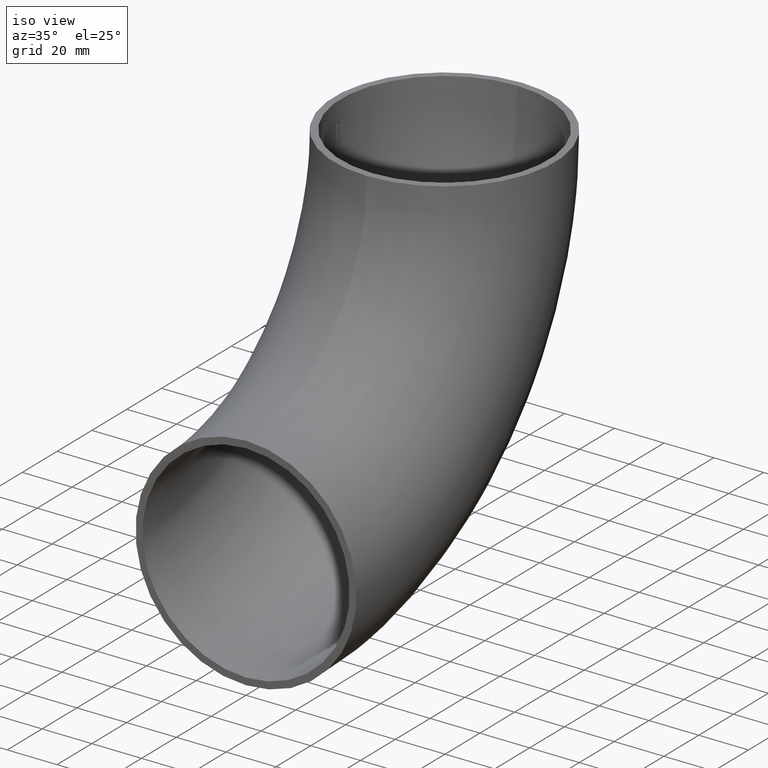
[diagram: clean part render]
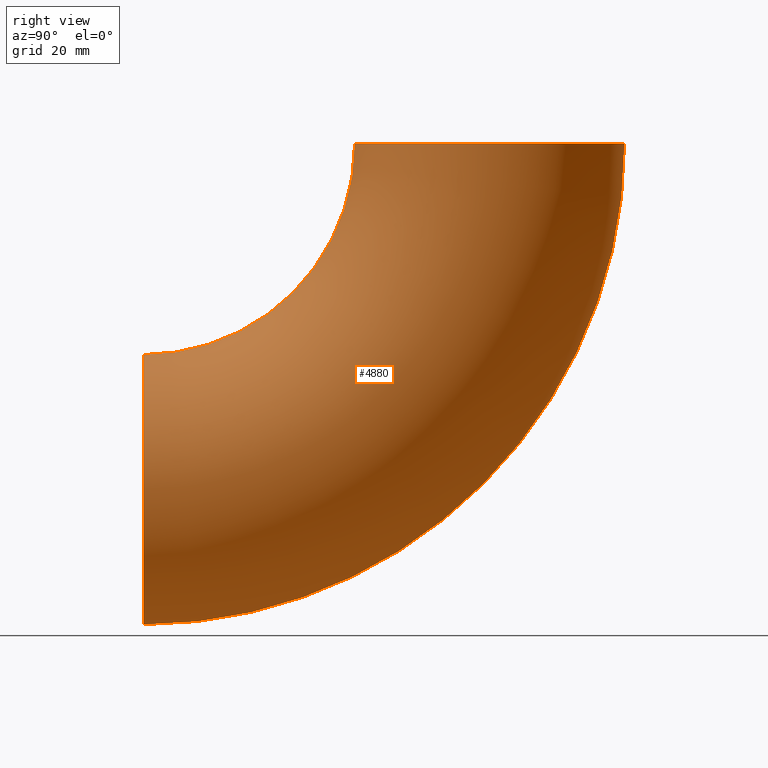
[diagram: tour spotlight — one face highlighted and labeled with its STEP entity id]
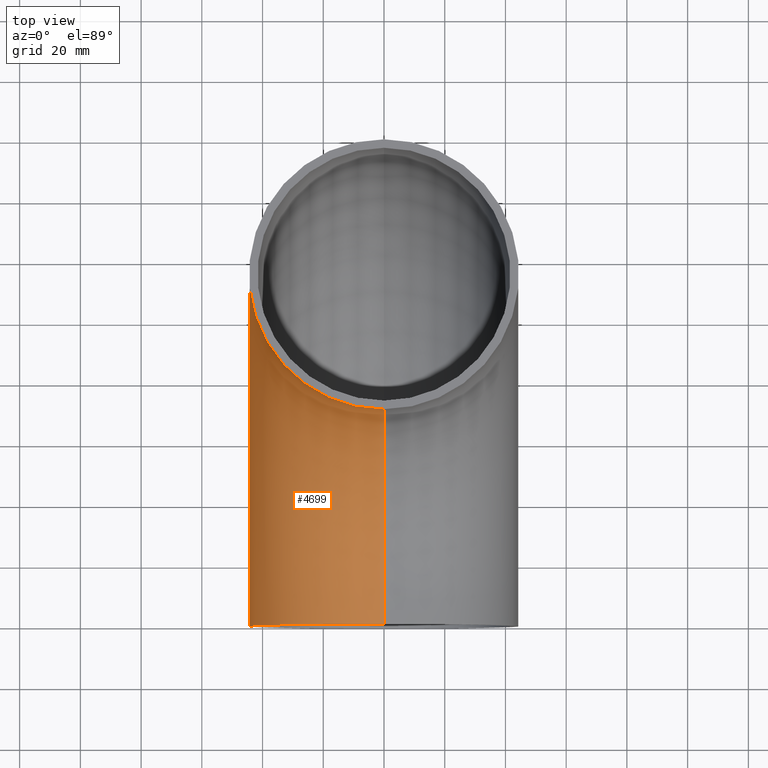
[diagram: tour spotlight — one face highlighted and labeled with its STEP entity id]
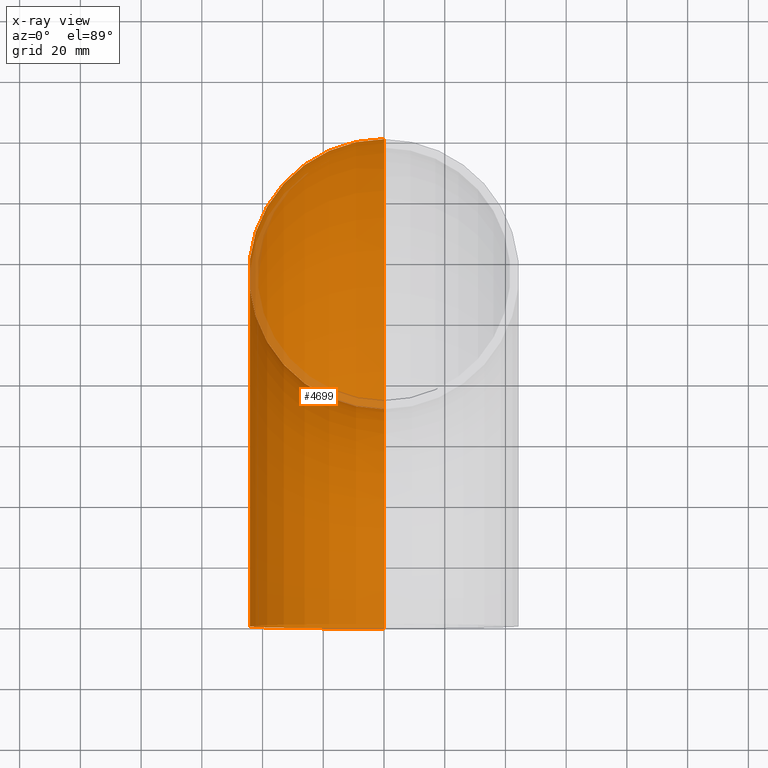
[diagram: x-ray of the same camera — body ghosted, this tour face saturated]
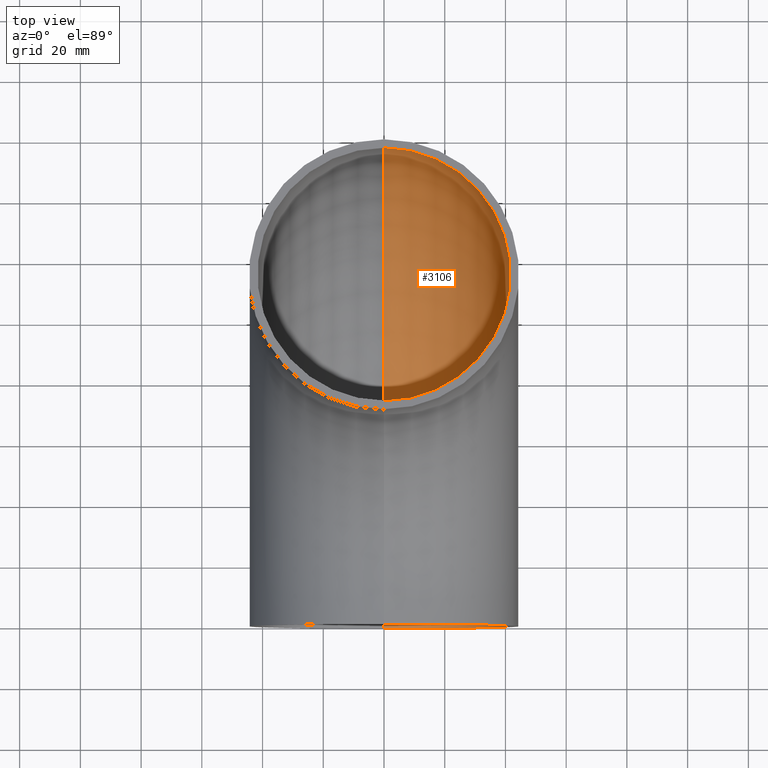
[diagram: tour spotlight — one face highlighted and labeled with its STEP entity id]
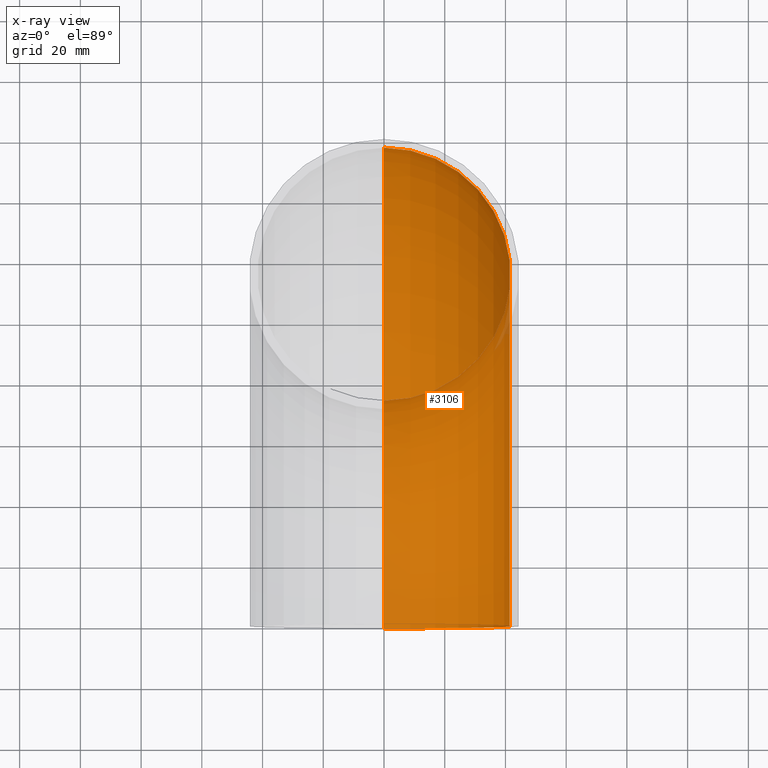
[diagram: x-ray of the same camera — body ghosted, this tour face saturated]
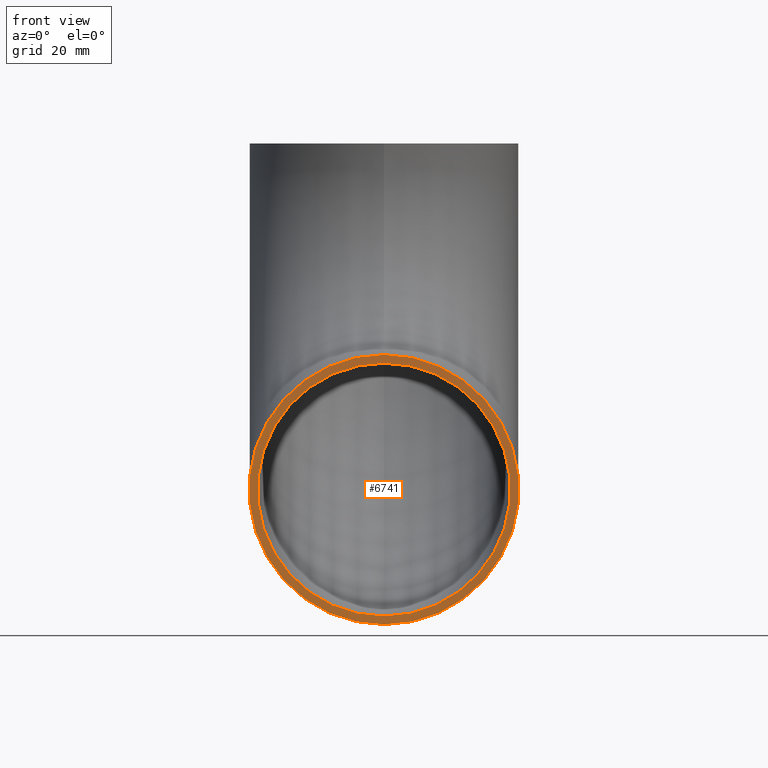
[diagram: tour spotlight — one face highlighted and labeled with its STEP entity id]
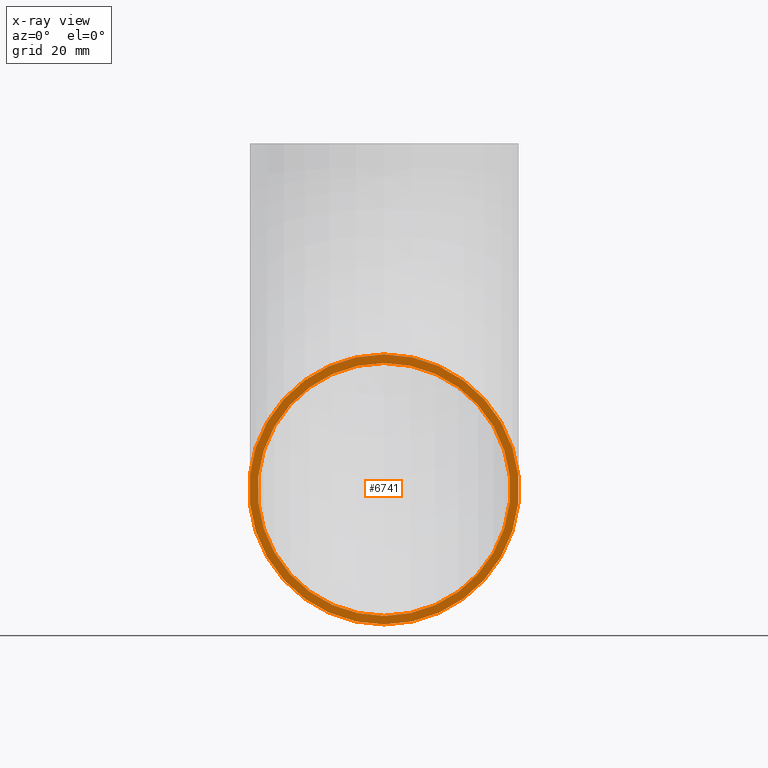
[diagram: x-ray of the same camera — body ghosted, this tour face saturated]
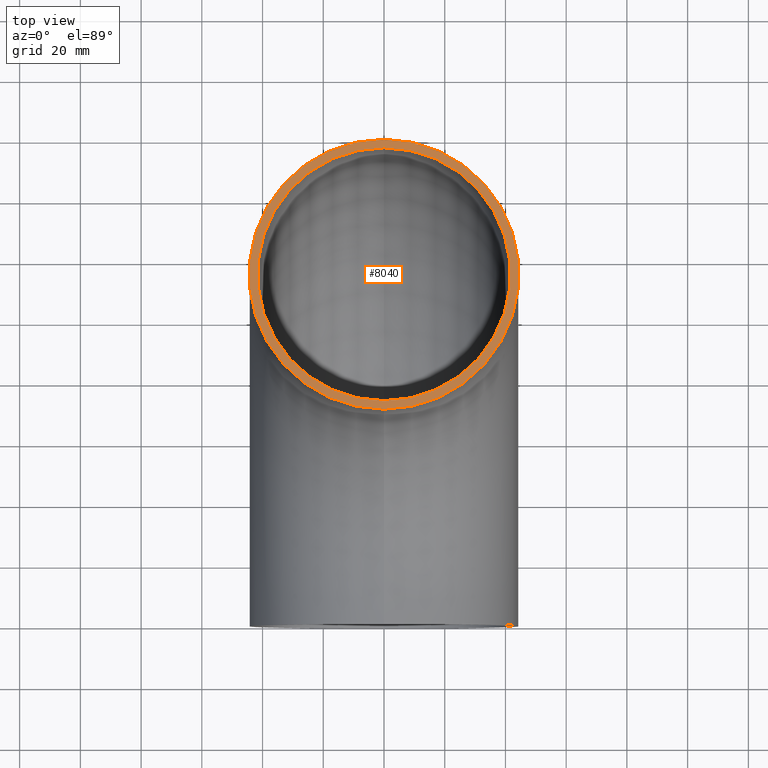
[diagram: tour spotlight — one face highlighted and labeled with its STEP entity id]
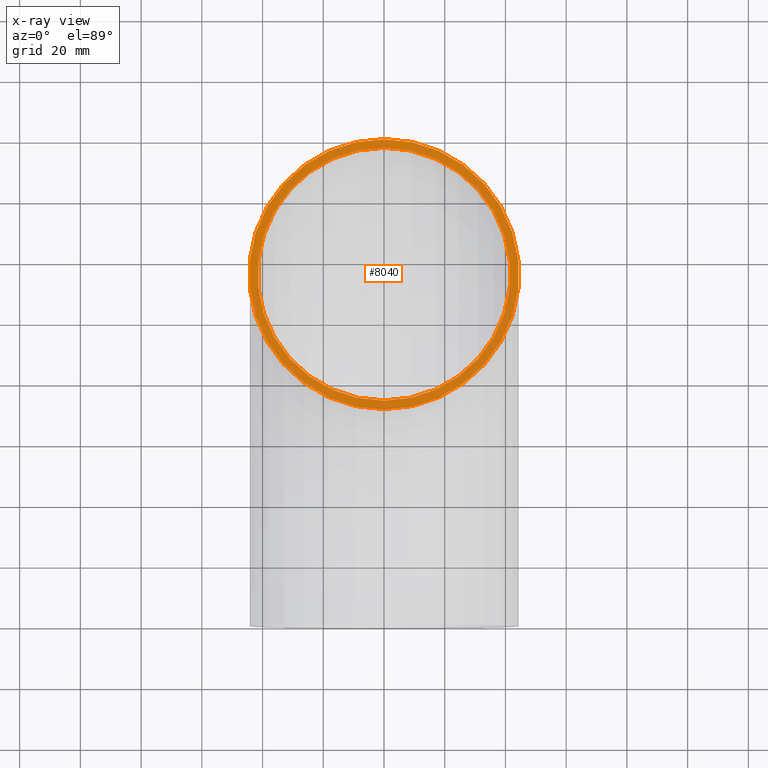
[diagram: x-ray of the same camera — body ghosted, this tour face saturated]
A machine part: a face-by-face anatomy tour. The part has 229 B-rep faces; the first image is the clean iso view, then the 5 largest visible faces are spotlighted one at a time (largest first), each with its STEP entity span.

Face 1 — right view, entity #4880. In plain terms, the highlighted toroidal blend (fillet) surface has major radius 114 mm and minor (blend) radius 44.45 mm.
Definition (entity closure, byte-faithful):
#225 = CARTESIAN_POINT ( 'NONE',  ( 0.0000000000000000000, 0.0000000000000000000, -69.54999999999999700 ) ) ;
#376 = ORIENTED_EDGE ( 'NONE', *, *, #2592, .F. ) ;
#450 = TOROIDAL_SURFACE ( 'NONE', #11426, 114.0000000000000000, 44.45000000000001000 ) ;
#1059 = DIRECTION ( 'NONE',  ( 0.0000000000000000000, 0.0000000000000000000, 1.000000000000000000 ) ) ;
#1529 = AXIS2_PLACEMENT_3D ( 'NONE', #6995, #1609, #11393 ) ;
#1609 = DIRECTION ( 'NONE',  ( 0.0000000000000000000, 6.123233995736766000E-017, 1.000000000000000000 ) ) ;
#2021 = DIRECTION ( 'NONE',  ( 0.0000000000000000000, 1.000000000000000000, 0.0000000000000000000 ) ) ;
#2197 = DIRECTION ( 'NONE',  ( -1.000000000000000000, -0.0000000000000000000, -0.0000000000000000000 ) ) ;
#2271 = DIRECTION ( 'NONE',  ( 0.0000000000000000000, 0.0000000000000000000, 1.000000000000000000 ) ) ;
#2338 = CARTESIAN_POINT ( 'NONE',  ( 0.0000000000000000000, 0.0000000000000000000, 0.0000000000000000000 ) ) ;
#2365 = CARTESIAN_POINT ( 'NONE',  ( 0.0000000000000000000, 0.0000000000000000000, 0.0000000000000000000 ) ) ;
#2423 = AXIS2_PLACEMENT_3D ( 'NONE', #2338, #8538, #4126 ) ;
#2467 = EDGE_LOOP ( 'NONE', ( #5878, #376, #2709, #10920 ) ) ;
#2592 = EDGE_CURVE ( 'NONE', #10753, #9542, #6303, .T. ) ;
#2709 = ORIENTED_EDGE ( 'NONE', *, *, #5150, .T. ) ;
#3852 = AXIS2_PLACEMENT_3D ( 'NONE', #5651, #2021, #1059 ) ;
#4126 = DIRECTION ( 'NONE',  ( 0.0000000000000000000, 0.0000000000000000000, 1.000000000000000000 ) ) ;
#4788 = CARTESIAN_POINT ( 'NONE',  ( 0.0000000000000000000, 69.54999999999999700, -4.258709244034919700E-015 ) ) ;
#4880 = ADVANCED_FACE ( 'NONE', ( #10001 ), #450, .T. ) ;
#5150 = EDGE_CURVE ( 'NONE', #10753, #5833, #9724, .T. ) ;
#5164 = CIRCLE ( 'NONE', #3852, 44.45000000000000300 ) ;
#5651 = CARTESIAN_POINT ( 'NONE',  ( 0.0000000000000000000, 0.0000000000000000000, -114.0000000000000000 ) ) ;
#5791 = CARTESIAN_POINT ( 'NONE',  ( 5.443555022209986500E-015, 0.0000000000000000000, 0.0000000000000000000 ) ) ;
#5833 = VERTEX_POINT ( 'NONE', #225 ) ;
#5878 = ORIENTED_EDGE ( 'NONE', *, *, #6168, .F. ) ;
#5885 = DIRECTION ( 'NONE',  ( -1.000000000000000000, -0.0000000000000000000, -0.0000000000000000000 ) ) ;
#5917 = DIRECTION ( 'NONE',  ( 0.0000000000000000000, 0.0000000000000000000, 1.000000000000000000 ) ) ;
#6168 = EDGE_CURVE ( 'NONE', #9542, #10046, #8336, .T. ) ;
#6303 = CIRCLE ( 'NONE', #1529, 44.45000000000000300 ) ;
#6995 = CARTESIAN_POINT ( 'NONE',  ( 0.0000000000000000000, 114.0000000000000000, -6.980486755139912900E-015 ) ) ;
#8009 = CARTESIAN_POINT ( 'NONE',  ( 0.0000000000000000000, 158.4500000000000200, -9.702264266244906900E-015 ) ) ;
#8336 = CIRCLE ( 'NONE', #2423, 158.4500000000000200 ) ;
#8538 = DIRECTION ( 'NONE',  ( -1.000000000000000000, -0.0000000000000000000, -0.0000000000000000000 ) ) ;
#9018 = EDGE_CURVE ( 'NONE', #5833, #10046, #5164, .T. ) ;
#9036 = AXIS2_PLACEMENT_3D ( 'NONE', #5791, #2197, #2271 ) ;
#9542 = VERTEX_POINT ( 'NONE', #8009 ) ;
#9724 = CIRCLE ( 'NONE', #9036, 69.54999999999999700 ) ;
#10001 = FACE_OUTER_BOUND ( 'NONE', #2467, .T. ) ;
#10046 = VERTEX_POINT ( 'NONE', #11166 ) ;
#10753 = VERTEX_POINT ( 'NONE', #4788 ) ;
#10920 = ORIENTED_EDGE ( 'NONE', *, *, #9018, .T. ) ;
#11166 = CARTESIAN_POINT ( 'NONE',  ( 0.0000000000000000000, 0.0000000000000000000, -158.4500000000000200 ) ) ;
#11393 = DIRECTION ( 'NONE',  ( 0.0000000000000000000, -1.000000000000000000, 6.123233995736768500E-017 ) ) ;
#11426 = AXIS2_PLACEMENT_3D ( 'NONE', #2365, #5885, #5917 ) ;

Face 2 — top view, entity #4699. An x-ray twin of the same camera follows (body ghosted, this face saturated) — the face is partly hidden behind the body. In plain terms, the highlighted toroidal blend (fillet) surface has major radius 114 mm and minor (blend) radius 44.45 mm.
Definition (entity closure, byte-faithful):
#225 = CARTESIAN_POINT ( 'NONE',  ( 0.0000000000000000000, 0.0000000000000000000, -69.54999999999999700 ) ) ;
#274 = DIRECTION ( 'NONE',  ( 0.0000000000000000000, 6.123233995736766000E-017, 1.000000000000000000 ) ) ;
#294 = EDGE_CURVE ( 'NONE', #9542, #10753, #9893, .T. ) ;
#1206 = DIRECTION ( 'NONE',  ( 0.0000000000000000000, -1.000000000000000000, 6.123233995736768500E-017 ) ) ;
#1241 = CARTESIAN_POINT ( 'NONE',  ( 0.0000000000000000000, 114.0000000000000000, -6.980486755139912900E-015 ) ) ;
#1498 = ORIENTED_EDGE ( 'NONE', *, *, #5150, .F. ) ;
#2197 = DIRECTION ( 'NONE',  ( -1.000000000000000000, -0.0000000000000000000, -0.0000000000000000000 ) ) ;
#2271 = DIRECTION ( 'NONE',  ( 0.0000000000000000000, 0.0000000000000000000, 1.000000000000000000 ) ) ;
#2338 = CARTESIAN_POINT ( 'NONE',  ( 0.0000000000000000000, 0.0000000000000000000, 0.0000000000000000000 ) ) ;
#2380 = TOROIDAL_SURFACE ( 'NONE', #10377, 114.0000000000000000, 44.45000000000001000 ) ;
#2423 = AXIS2_PLACEMENT_3D ( 'NONE', #2338, #8538, #4126 ) ;
#2670 = DIRECTION ( 'NONE',  ( 0.0000000000000000000, 1.000000000000000000, 0.0000000000000000000 ) ) ;
#2744 = CARTESIAN_POINT ( 'NONE',  ( 0.0000000000000000000, 0.0000000000000000000, 0.0000000000000000000 ) ) ;
#2786 = ORIENTED_EDGE ( 'NONE', *, *, #6168, .T. ) ;
#3021 = DIRECTION ( 'NONE',  ( 0.0000000000000000000, 0.0000000000000000000, 1.000000000000000000 ) ) ;
#4126 = DIRECTION ( 'NONE',  ( 0.0000000000000000000, 0.0000000000000000000, 1.000000000000000000 ) ) ;
#4540 = EDGE_CURVE ( 'NONE', #10046, #5833, #8200, .T. ) ;
#4699 = ADVANCED_FACE ( 'NONE', ( #5312 ), #2380, .T. ) ;
#4788 = CARTESIAN_POINT ( 'NONE',  ( 0.0000000000000000000, 69.54999999999999700, -4.258709244034919700E-015 ) ) ;
#5150 = EDGE_CURVE ( 'NONE', #10753, #5833, #9724, .T. ) ;
#5290 = DIRECTION ( 'NONE',  ( 0.0000000000000000000, 0.0000000000000000000, 1.000000000000000000 ) ) ;
#5312 = FACE_OUTER_BOUND ( 'NONE', #7423, .T. ) ;
#5682 = DIRECTION ( 'NONE',  ( -1.000000000000000000, -0.0000000000000000000, -0.0000000000000000000 ) ) ;
#5791 = CARTESIAN_POINT ( 'NONE',  ( 5.443555022209986500E-015, 0.0000000000000000000, 0.0000000000000000000 ) ) ;
#5833 = VERTEX_POINT ( 'NONE', #225 ) ;
#6168 = EDGE_CURVE ( 'NONE', #9542, #10046, #8336, .T. ) ;
#6221 = CARTESIAN_POINT ( 'NONE',  ( 0.0000000000000000000, 0.0000000000000000000, -114.0000000000000000 ) ) ;
#7423 = EDGE_LOOP ( 'NONE', ( #10505, #2786, #10830, #1498 ) ) ;
#8009 = CARTESIAN_POINT ( 'NONE',  ( 0.0000000000000000000, 158.4500000000000200, -9.702264266244906900E-015 ) ) ;
#8200 = CIRCLE ( 'NONE', #10596, 44.45000000000000300 ) ;
#8336 = CIRCLE ( 'NONE', #2423, 158.4500000000000200 ) ;
#8538 = DIRECTION ( 'NONE',  ( -1.000000000000000000, -0.0000000000000000000, -0.0000000000000000000 ) ) ;
#9036 = AXIS2_PLACEMENT_3D ( 'NONE', #5791, #2197, #2271 ) ;
#9542 = VERTEX_POINT ( 'NONE', #8009 ) ;
#9724 = CIRCLE ( 'NONE', #9036, 69.54999999999999700 ) ;
#9755 = AXIS2_PLACEMENT_3D ( 'NONE', #1241, #274, #1206 ) ;
#9893 = CIRCLE ( 'NONE', #9755, 44.45000000000000300 ) ;
#10046 = VERTEX_POINT ( 'NONE', #11166 ) ;
#10377 = AXIS2_PLACEMENT_3D ( 'NONE', #2744, #5682, #3021 ) ;
#10505 = ORIENTED_EDGE ( 'NONE', *, *, #294, .F. ) ;
#10596 = AXIS2_PLACEMENT_3D ( 'NONE', #6221, #2670, #5290 ) ;
#10753 = VERTEX_POINT ( 'NONE', #4788 ) ;
#10830 = ORIENTED_EDGE ( 'NONE', *, *, #4540, .T. ) ;
#11166 = CARTESIAN_POINT ( 'NONE',  ( 0.0000000000000000000, 0.0000000000000000000, -158.4500000000000200 ) ) ;

Face 3 — top view, entity #3106. An x-ray twin of the same camera follows (body ghosted, this face saturated) — the face is partly hidden behind the body. In plain terms, the highlighted toroidal blend (fillet) surface has major radius 114 mm and minor (blend) radius 41.65 mm.
Definition (entity closure, byte-faithful):
#121 = VERTEX_POINT ( 'NONE', #7169 ) ;
#508 = AXIS2_PLACEMENT_3D ( 'NONE', #5336, #6111, #3447 ) ;
#738 = FACE_OUTER_BOUND ( 'NONE', #3914, .T. ) ;
#757 = EDGE_CURVE ( 'NONE', #10807, #1085, #3655, .T. ) ;
#1085 = VERTEX_POINT ( 'NONE', #8925 ) ;
#2123 = AXIS2_PLACEMENT_3D ( 'NONE', #4922, #2385, #10300 ) ;
#2315 = CARTESIAN_POINT ( 'NONE',  ( 0.0000000000000000000, 114.0000000000000000, -6.980486755139912900E-015 ) ) ;
#2385 = DIRECTION ( 'NONE',  ( -1.000000000000000000, -0.0000000000000000000, -0.0000000000000000000 ) ) ;
#2958 = AXIS2_PLACEMENT_3D ( 'NONE', #10503, #5212, #10390 ) ;
#3106 = ADVANCED_FACE ( 'NONE', ( #738 ), #4342, .F. ) ;
#3251 = DIRECTION ( 'NONE',  ( 0.0000000000000000000, -1.000000000000000000, 6.123233995736767300E-017 ) ) ;
#3447 = DIRECTION ( 'NONE',  ( 0.0000000000000000000, 0.0000000000000000000, 1.000000000000000000 ) ) ;
#3620 = CARTESIAN_POINT ( 'NONE',  ( 0.0000000000000000000, 0.0000000000000000000, -114.0000000000000000 ) ) ;
#3655 = CIRCLE ( 'NONE', #7522, 41.65000000000000600 ) ;
#3893 = ORIENTED_EDGE ( 'NONE', *, *, #9512, .F. ) ;
#3914 = EDGE_LOOP ( 'NONE', ( #11452, #7232, #9927, #3893 ) ) ;
#4342 = TOROIDAL_SURFACE ( 'NONE', #2123, 114.0000000000000000, 41.65000000000000600 ) ;
#4922 = CARTESIAN_POINT ( 'NONE',  ( 0.0000000000000000000, 0.0000000000000000000, 0.0000000000000000000 ) ) ;
#5212 = DIRECTION ( 'NONE',  ( -1.000000000000000000, -0.0000000000000000000, -0.0000000000000000000 ) ) ;
#5336 = CARTESIAN_POINT ( 'NONE',  ( 5.100653918448727000E-015, 0.0000000000000000000, 0.0000000000000000000 ) ) ;
#6015 = DIRECTION ( 'NONE',  ( 0.0000000000000000000, 1.000000000000000000, 0.0000000000000000000 ) ) ;
#6111 = DIRECTION ( 'NONE',  ( -1.000000000000000000, -0.0000000000000000000, -0.0000000000000000000 ) ) ;
#6200 = DIRECTION ( 'NONE',  ( 0.0000000000000000000, 0.0000000000000000000, 1.000000000000000000 ) ) ;
#6540 = AXIS2_PLACEMENT_3D ( 'NONE', #2315, #9336, #3251 ) ;
#7169 = CARTESIAN_POINT ( 'NONE',  ( 0.0000000000000000000, 72.34999999999999400, -4.430159795915549000E-015 ) ) ;
#7232 = ORIENTED_EDGE ( 'NONE', *, *, #7374, .T. ) ;
#7374 = EDGE_CURVE ( 'NONE', #10940, #1085, #9441, .T. ) ;
#7522 = AXIS2_PLACEMENT_3D ( 'NONE', #3620, #6015, #6200 ) ;
#7546 = CARTESIAN_POINT ( 'NONE',  ( 0.0000000000000000000, 0.0000000000000000000, -72.34999999999999400 ) ) ;
#8142 = EDGE_CURVE ( 'NONE', #121, #10940, #9444, .T. ) ;
#8925 = CARTESIAN_POINT ( 'NONE',  ( 0.0000000000000000000, 0.0000000000000000000, -155.6500000000000100 ) ) ;
#8954 = CARTESIAN_POINT ( 'NONE',  ( 0.0000000000000000000, 155.6500000000000100, -9.530813714364276800E-015 ) ) ;
#9336 = DIRECTION ( 'NONE',  ( 0.0000000000000000000, 6.123233995736766000E-017, 1.000000000000000000 ) ) ;
#9441 = CIRCLE ( 'NONE', #2958, 155.6500000000000100 ) ;
#9444 = CIRCLE ( 'NONE', #6540, 41.65000000000000600 ) ;
#9512 = EDGE_CURVE ( 'NONE', #121, #10807, #9566, .T. ) ;
#9566 = CIRCLE ( 'NONE', #508, 72.34999999999999400 ) ;
#9927 = ORIENTED_EDGE ( 'NONE', *, *, #757, .F. ) ;
#10300 = DIRECTION ( 'NONE',  ( 0.0000000000000000000, 0.0000000000000000000, 1.000000000000000000 ) ) ;
#10390 = DIRECTION ( 'NONE',  ( 0.0000000000000000000, 0.0000000000000000000, 1.000000000000000000 ) ) ;
#10503 = CARTESIAN_POINT ( 'NONE',  ( 0.0000000000000000000, 0.0000000000000000000, 0.0000000000000000000 ) ) ;
#10807 = VERTEX_POINT ( 'NONE', #7546 ) ;
#10940 = VERTEX_POINT ( 'NONE', #8954 ) ;
#11452 = ORIENTED_EDGE ( 'NONE', *, *, #8142, .T. ) ;

Face 4 — front view, entity #6741. An x-ray twin of the same camera follows (body ghosted, this face saturated) — the face is partly hidden behind the body. In plain terms, the highlighted planar face has unit normal (0, 1, 0).
Definition (entity closure, byte-faithful):
#225 = CARTESIAN_POINT ( 'NONE',  ( 0.0000000000000000000, 0.0000000000000000000, -69.54999999999999700 ) ) ;
#360 = AXIS2_PLACEMENT_3D ( 'NONE', #4872, #11109, #6734 ) ;
#446 = PLANE ( 'NONE',  #360 ) ;
#757 = EDGE_CURVE ( 'NONE', #10807, #1085, #3655, .T. ) ;
#854 = CIRCLE ( 'NONE', #10074, 41.65000000000000600 ) ;
#1059 = DIRECTION ( 'NONE',  ( 0.0000000000000000000, 0.0000000000000000000, 1.000000000000000000 ) ) ;
#1085 = VERTEX_POINT ( 'NONE', #8925 ) ;
#2021 = DIRECTION ( 'NONE',  ( 0.0000000000000000000, 1.000000000000000000, 0.0000000000000000000 ) ) ;
#2670 = DIRECTION ( 'NONE',  ( 0.0000000000000000000, 1.000000000000000000, 0.0000000000000000000 ) ) ;
#2871 = ORIENTED_EDGE ( 'NONE', *, *, #9018, .F. ) ;
#3213 = EDGE_LOOP ( 'NONE', ( #2871, #3294 ) ) ;
#3294 = ORIENTED_EDGE ( 'NONE', *, *, #4540, .F. ) ;
#3620 = CARTESIAN_POINT ( 'NONE',  ( 0.0000000000000000000, 0.0000000000000000000, -114.0000000000000000 ) ) ;
#3655 = CIRCLE ( 'NONE', #7522, 41.65000000000000600 ) ;
#3852 = AXIS2_PLACEMENT_3D ( 'NONE', #5651, #2021, #1059 ) ;
#3855 = DIRECTION ( 'NONE',  ( 0.0000000000000000000, 0.0000000000000000000, 1.000000000000000000 ) ) ;
#4540 = EDGE_CURVE ( 'NONE', #10046, #5833, #8200, .T. ) ;
#4872 = CARTESIAN_POINT ( 'NONE',  ( 0.0000000000000000000, 0.0000000000000000000, -114.0000000000000000 ) ) ;
#5160 = FACE_BOUND ( 'NONE', #10803, .T. ) ;
#5164 = CIRCLE ( 'NONE', #3852, 44.45000000000000300 ) ;
#5290 = DIRECTION ( 'NONE',  ( 0.0000000000000000000, 0.0000000000000000000, 1.000000000000000000 ) ) ;
#5651 = CARTESIAN_POINT ( 'NONE',  ( 0.0000000000000000000, 0.0000000000000000000, -114.0000000000000000 ) ) ;
#5833 = VERTEX_POINT ( 'NONE', #225 ) ;
#6015 = DIRECTION ( 'NONE',  ( 0.0000000000000000000, 1.000000000000000000, 0.0000000000000000000 ) ) ;
#6200 = DIRECTION ( 'NONE',  ( 0.0000000000000000000, 0.0000000000000000000, 1.000000000000000000 ) ) ;
#6221 = CARTESIAN_POINT ( 'NONE',  ( 0.0000000000000000000, 0.0000000000000000000, -114.0000000000000000 ) ) ;
#6637 = ORIENTED_EDGE ( 'NONE', *, *, #7803, .T. ) ;
#6734 = DIRECTION ( 'NONE',  ( 0.0000000000000000000, -0.0000000000000000000, 1.000000000000000000 ) ) ;
#6741 = ADVANCED_FACE ( 'NONE', ( #5160, #9161 ), #446, .F. ) ;
#7364 = CARTESIAN_POINT ( 'NONE',  ( 0.0000000000000000000, 0.0000000000000000000, -114.0000000000000000 ) ) ;
#7522 = AXIS2_PLACEMENT_3D ( 'NONE', #3620, #6015, #6200 ) ;
#7546 = CARTESIAN_POINT ( 'NONE',  ( 0.0000000000000000000, 0.0000000000000000000, -72.34999999999999400 ) ) ;
#7803 = EDGE_CURVE ( 'NONE', #1085, #10807, #854, .T. ) ;
#8200 = CIRCLE ( 'NONE', #10596, 44.45000000000000300 ) ;
#8925 = CARTESIAN_POINT ( 'NONE',  ( 0.0000000000000000000, 0.0000000000000000000, -155.6500000000000100 ) ) ;
#9018 = EDGE_CURVE ( 'NONE', #5833, #10046, #5164, .T. ) ;
#9161 = FACE_OUTER_BOUND ( 'NONE', #3213, .T. ) ;
#9208 = DIRECTION ( 'NONE',  ( 0.0000000000000000000, 1.000000000000000000, 0.0000000000000000000 ) ) ;
#10046 = VERTEX_POINT ( 'NONE', #11166 ) ;
#10074 = AXIS2_PLACEMENT_3D ( 'NONE', #7364, #9208, #3855 ) ;
#10132 = ORIENTED_EDGE ( 'NONE', *, *, #757, .T. ) ;
#10596 = AXIS2_PLACEMENT_3D ( 'NONE', #6221, #2670, #5290 ) ;
#10803 = EDGE_LOOP ( 'NONE', ( #10132, #6637 ) ) ;
#10807 = VERTEX_POINT ( 'NONE', #7546 ) ;
#11109 = DIRECTION ( 'NONE',  ( 0.0000000000000000000, 1.000000000000000000, 0.0000000000000000000 ) ) ;
#11166 = CARTESIAN_POINT ( 'NONE',  ( 0.0000000000000000000, 0.0000000000000000000, -158.4500000000000200 ) ) ;

Face 5 — top view, entity #8040. An x-ray twin of the same camera follows (body ghosted, this face saturated) — the face is partly hidden behind the body. In plain terms, the highlighted planar face has unit normal (0, 0, 1).
Definition (entity closure, byte-faithful):
#121 = VERTEX_POINT ( 'NONE', #7169 ) ;
#274 = DIRECTION ( 'NONE',  ( 0.0000000000000000000, 6.123233995736766000E-017, 1.000000000000000000 ) ) ;
#294 = EDGE_CURVE ( 'NONE', #9542, #10753, #9893, .T. ) ;
#388 = DIRECTION ( 'NONE',  ( 0.0000000000000000000, -1.000000000000000000, 6.123233995736767300E-017 ) ) ;
#1206 = DIRECTION ( 'NONE',  ( 0.0000000000000000000, -1.000000000000000000, 6.123233995736768500E-017 ) ) ;
#1241 = CARTESIAN_POINT ( 'NONE',  ( 0.0000000000000000000, 114.0000000000000000, -6.980486755139912900E-015 ) ) ;
#1529 = AXIS2_PLACEMENT_3D ( 'NONE', #6995, #1609, #11393 ) ;
#1609 = DIRECTION ( 'NONE',  ( 0.0000000000000000000, 6.123233995736766000E-017, 1.000000000000000000 ) ) ;
#2315 = CARTESIAN_POINT ( 'NONE',  ( 0.0000000000000000000, 114.0000000000000000, -6.980486755139912900E-015 ) ) ;
#2431 = ORIENTED_EDGE ( 'NONE', *, *, #8142, .F. ) ;
#2592 = EDGE_CURVE ( 'NONE', #10753, #9542, #6303, .T. ) ;
#2993 = DIRECTION ( 'NONE',  ( 0.0000000000000000000, 6.123233995736766000E-017, 1.000000000000000000 ) ) ;
#3251 = DIRECTION ( 'NONE',  ( 0.0000000000000000000, -1.000000000000000000, 6.123233995736767300E-017 ) ) ;
#3619 = ORIENTED_EDGE ( 'NONE', *, *, #294, .T. ) ;
#4145 = AXIS2_PLACEMENT_3D ( 'NONE', #6615, #2993, #8372 ) ;
#4552 = ORIENTED_EDGE ( 'NONE', *, *, #9652, .F. ) ;
#4788 = CARTESIAN_POINT ( 'NONE',  ( 0.0000000000000000000, 69.54999999999999700, -4.258709244034919700E-015 ) ) ;
#4943 = PLANE ( 'NONE',  #4145 ) ;
#5276 = AXIS2_PLACEMENT_3D ( 'NONE', #10068, #5640, #388 ) ;
#5640 = DIRECTION ( 'NONE',  ( 0.0000000000000000000, 6.123233995736766000E-017, 1.000000000000000000 ) ) ;
#6056 = ORIENTED_EDGE ( 'NONE', *, *, #2592, .T. ) ;
#6303 = CIRCLE ( 'NONE', #1529, 44.45000000000000300 ) ;
#6414 = FACE_OUTER_BOUND ( 'NONE', #9502, .T. ) ;
#6540 = AXIS2_PLACEMENT_3D ( 'NONE', #2315, #9336, #3251 ) ;
#6615 = CARTESIAN_POINT ( 'NONE',  ( 0.0000000000000000000, 114.0000000000000000, -6.980486755139912900E-015 ) ) ;
#6995 = CARTESIAN_POINT ( 'NONE',  ( 0.0000000000000000000, 114.0000000000000000, -6.980486755139912900E-015 ) ) ;
#7075 = EDGE_LOOP ( 'NONE', ( #2431, #4552 ) ) ;
#7169 = CARTESIAN_POINT ( 'NONE',  ( 0.0000000000000000000, 72.34999999999999400, -4.430159795915549000E-015 ) ) ;
#8009 = CARTESIAN_POINT ( 'NONE',  ( 0.0000000000000000000, 158.4500000000000200, -9.702264266244906900E-015 ) ) ;
#8040 = ADVANCED_FACE ( 'NONE', ( #9992, #6414 ), #4943, .T. ) ;
#8142 = EDGE_CURVE ( 'NONE', #121, #10940, #9444, .T. ) ;
#8372 = DIRECTION ( 'NONE',  ( 0.0000000000000000000, -1.000000000000000000, 6.123233995736766000E-017 ) ) ;
#8954 = CARTESIAN_POINT ( 'NONE',  ( 0.0000000000000000000, 155.6500000000000100, -9.530813714364276800E-015 ) ) ;
#9336 = DIRECTION ( 'NONE',  ( 0.0000000000000000000, 6.123233995736766000E-017, 1.000000000000000000 ) ) ;
#9444 = CIRCLE ( 'NONE', #6540, 41.65000000000000600 ) ;
#9502 = EDGE_LOOP ( 'NONE', ( #6056, #3619 ) ) ;
#9542 = VERTEX_POINT ( 'NONE', #8009 ) ;
#9652 = EDGE_CURVE ( 'NONE', #10940, #121, #9978, .T. ) ;
#9755 = AXIS2_PLACEMENT_3D ( 'NONE', #1241, #274, #1206 ) ;
#9893 = CIRCLE ( 'NONE', #9755, 44.45000000000000300 ) ;
#9978 = CIRCLE ( 'NONE', #5276, 41.65000000000000600 ) ;
#9992 = FACE_BOUND ( 'NONE', #7075, .T. ) ;
#10068 = CARTESIAN_POINT ( 'NONE',  ( 0.0000000000000000000, 114.0000000000000000, -6.980486755139912900E-015 ) ) ;
#10753 = VERTEX_POINT ( 'NONE', #4788 ) ;
#10940 = VERTEX_POINT ( 'NONE', #8954 ) ;
#11393 = DIRECTION ( 'NONE',  ( 0.0000000000000000000, -1.000000000000000000, 6.123233995736768500E-017 ) ) ;